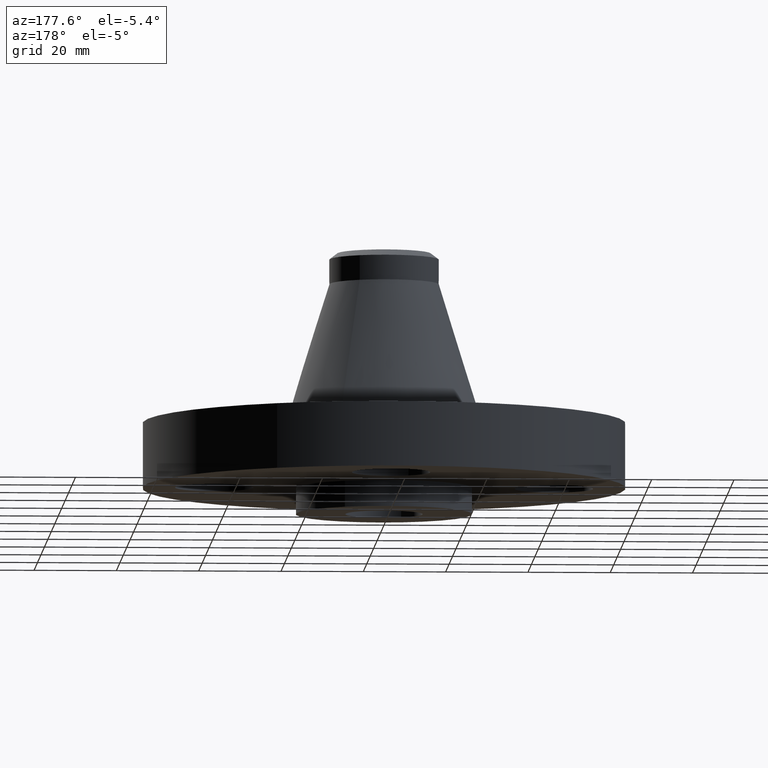
[diagram: clean part render]
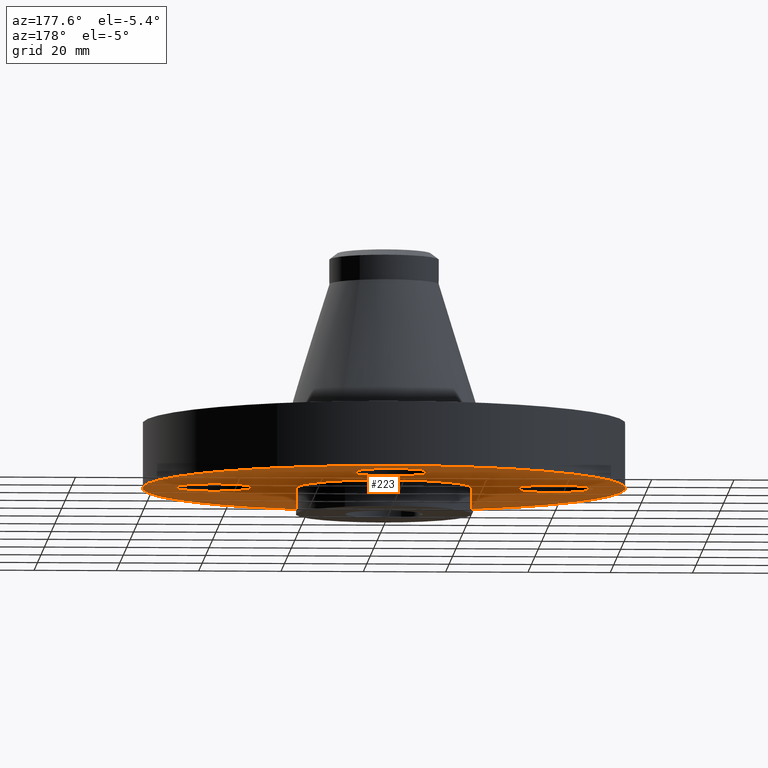
[diagram: same view with one face highlighted and labeled with its STEP entity id]
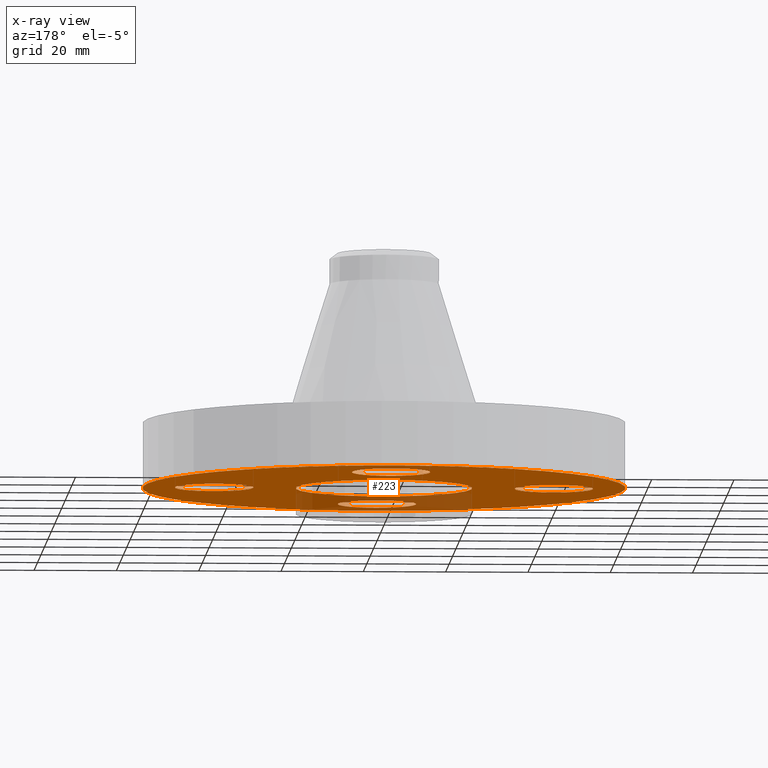
[diagram: x-ray of the same camera — body ghosted, the highlighted face saturated]
A machine part, auxiliary view. The second image highlights one B-rep face of the part: STEP entity #223.
The next image is the same camera in x-ray: the body ghosted, the highlighted face saturated — about 17% of this face is hidden behind the body in this view.
In plain terms, the highlighted planar face has unit normal (0, 0, -1).
Its self-contained STEP definition (entity closure, byte-faithful):
#51=AXIS2_PLACEMENT_3D('Circle Axis2P3D',#49,#50,$) ;
#102=AXIS2_PLACEMENT_3D('Circle Axis2P3D',#100,#101,$) ;
#127=AXIS2_PLACEMENT_3D('Plane Axis2P3D',#124,#125,#126) ;
#131=AXIS2_PLACEMENT_3D('Circle Axis2P3D',#129,#130,$) ;
#140=AXIS2_PLACEMENT_3D('Circle Axis2P3D',#138,#139,$) ;
#153=AXIS2_PLACEMENT_3D('Circle Axis2P3D',#151,#152,$) ;
#162=AXIS2_PLACEMENT_3D('Circle Axis2P3D',#160,#161,$) ;
#171=AXIS2_PLACEMENT_3D('Circle Axis2P3D',#169,#170,$) ;
#180=AXIS2_PLACEMENT_3D('Circle Axis2P3D',#178,#179,$) ;
#189=AXIS2_PLACEMENT_3D('Circle Axis2P3D',#187,#188,$) ;
#198=AXIS2_PLACEMENT_3D('Circle Axis2P3D',#196,#197,$) ;
#207=AXIS2_PLACEMENT_3D('Circle Axis2P3D',#205,#206,$) ;
#216=AXIS2_PLACEMENT_3D('Circle Axis2P3D',#214,#215,$) ;
#44=CARTESIAN_POINT('Vertex',(1.2959065393,0.179784576977,0.)) ;
#49=CARTESIAN_POINT('Axis2P3D Location',(1.62500000001,0.,0.)) ;
#53=CARTESIAN_POINT('Vertex',(1.95409346072,-0.179784576977,2.55543617763E-013)) ;
#100=CARTESIAN_POINT('Axis2P3D Location',(1.62500000001,0.,2.55543617763E-013)) ;
#124=CARTESIAN_POINT('Axis2P3D Location',(0.,0.845000000003,0.)) ;
#129=CARTESIAN_POINT('Axis2P3D Location',(-1.28113093187E-011,-7.89373815657E-012,0.)) ;
#133=CARTESIAN_POINT('Vertex',(-1.10747299418,-2.02721571797,-1.46668329275E-011)) ;
#135=CARTESIAN_POINT('Vertex',(1.10747299418,2.02721571798,-1.46668329275E-011)) ;
#138=CARTESIAN_POINT('Axis2P3D Location',(1.28113093187E-011,-2.18922692747E-011,0.)) ;
#151=CARTESIAN_POINT('Axis2P3D Location',(-4.36655086542E-011,8.96137057823E-012,0.)) ;
#155=CARTESIAN_POINT('Vertex',(0.405114580122,0.741557264796,0.)) ;
#157=CARTESIAN_POINT('Vertex',(-0.405114580122,-0.7415572648,-1.46668329275E-011)) ;
#160=CARTESIAN_POINT('Axis2P3D Location',(1.28118688012E-011,-2.18921294041E-011,0.)) ;
#169=CARTESIAN_POINT('Axis2P3D Location',(3.49676543189E-017,-1.62499999999,0.)) ;
#173=CARTESIAN_POINT('Vertex',(0.179784576973,-1.2959065393,0.)) ;
#175=CARTESIAN_POINT('Vertex',(-0.179784576973,-1.95409346069,0.)) ;
#178=CARTESIAN_POINT('Axis2P3D Location',(-3.49676543189E-017,-1.62499999999,0.)) ;
#187=CARTESIAN_POINT('Axis2P3D Location',(-1.62500000001,2.17732393794E-011,0.)) ;
#191=CARTESIAN_POINT('Vertex',(-1.29590653932,-0.179784576951,0.)) ;
#193=CARTESIAN_POINT('Vertex',(-1.95409346071,0.179784576995,0.)) ;
#196=CARTESIAN_POINT('Axis2P3D Location',(-1.62500000001,2.17732393794E-011,0.)) ;
#205=CARTESIAN_POINT('Axis2P3D Location',(1.28118688012E-011,1.62499999999,0.)) ;
#209=CARTESIAN_POINT('Vertex',(-0.179784576973,1.29590653927,0.)) ;
#211=CARTESIAN_POINT('Vertex',(0.179784576973,1.95409346073,0.)) ;
#214=CARTESIAN_POINT('Axis2P3D Location',(-4.36653687836E-011,1.62500000002,0.)) ;
#50=DIRECTION('Axis2P3D Direction',(0.,-0.,-0.0393700787402)) ;
#101=DIRECTION('Axis2P3D Direction',(0.,-0.,-0.0393700787402)) ;
#125=DIRECTION('Axis2P3D Direction',(0.,0.,-0.0393700787402)) ;
#126=DIRECTION('Axis2P3D XDirection',(0.0393700787402,0.,0.)) ;
#130=DIRECTION('Axis2P3D Direction',(0.,0.,-0.0393700787402)) ;
#139=DIRECTION('Axis2P3D Direction',(0.,0.,-0.0393700787402)) ;
#152=DIRECTION('Axis2P3D Direction',(0.,0.,-0.0393700787402)) ;
#161=DIRECTION('Axis2P3D Direction',(0.,0.,-0.0393700787402)) ;
#170=DIRECTION('Axis2P3D Direction',(0.,0.,-0.0393700787402)) ;
#179=DIRECTION('Axis2P3D Direction',(0.,0.,-0.0393700787402)) ;
#188=DIRECTION('Axis2P3D Direction',(0.,0.,-0.0393700787402)) ;
#197=DIRECTION('Axis2P3D Direction',(0.,0.,-0.0393700787402)) ;
#206=DIRECTION('Axis2P3D Direction',(0.,0.,-0.0393700787402)) ;
#215=DIRECTION('Axis2P3D Direction',(0.,0.,-0.0393700787402)) ;
#144=ORIENTED_EDGE('',*,*,#137,.T.) ;
#145=ORIENTED_EDGE('',*,*,#142,.T.) ;
#148=ORIENTED_EDGE('',*,*,#104,.F.) ;
#149=ORIENTED_EDGE('',*,*,#55,.F.) ;
#166=ORIENTED_EDGE('',*,*,#159,.F.) ;
#167=ORIENTED_EDGE('',*,*,#164,.F.) ;
#184=ORIENTED_EDGE('',*,*,#177,.F.) ;
#185=ORIENTED_EDGE('',*,*,#182,.F.) ;
#202=ORIENTED_EDGE('',*,*,#195,.F.) ;
#203=ORIENTED_EDGE('',*,*,#200,.F.) ;
#220=ORIENTED_EDGE('',*,*,#213,.F.) ;
#221=ORIENTED_EDGE('',*,*,#218,.F.) ;
#150=FACE_BOUND('',#147,.T.) ;
#168=FACE_BOUND('',#165,.T.) ;
#186=FACE_BOUND('',#183,.T.) ;
#204=FACE_BOUND('',#201,.T.) ;
#222=FACE_BOUND('',#219,.T.) ;
#223=ADVANCED_FACE('PartBody',(#146,#150,#168,#186,#204,#222),#128,.T.) ;
#52=CIRCLE('generated circle',#51,0.375000000001) ;
#103=CIRCLE('generated circle',#102,0.375000000001) ;
#132=CIRCLE('generated circle',#131,2.31000000001) ;
#141=CIRCLE('generated circle',#140,2.31000000001) ;
#154=CIRCLE('generated circle',#153,0.845000000012) ;
#163=CIRCLE('generated circle',#162,0.845000000012) ;
#172=CIRCLE('generated circle',#171,0.374999999988) ;
#181=CIRCLE('generated circle',#180,0.374999999988) ;
#190=CIRCLE('generated circle',#189,0.374999999988) ;
#199=CIRCLE('generated circle',#198,0.374999999988) ;
#208=CIRCLE('generated circle',#207,0.375000000021) ;
#217=CIRCLE('generated circle',#216,0.375000000021) ;
#55=EDGE_CURVE('',#45,#54,#52,.T.) ;
#104=EDGE_CURVE('',#54,#45,#103,.T.) ;
#137=EDGE_CURVE('',#134,#136,#132,.T.) ;
#142=EDGE_CURVE('',#136,#134,#141,.T.) ;
#159=EDGE_CURVE('',#156,#158,#154,.T.) ;
#164=EDGE_CURVE('',#158,#156,#163,.T.) ;
#177=EDGE_CURVE('',#174,#176,#172,.T.) ;
#182=EDGE_CURVE('',#176,#174,#181,.T.) ;
#195=EDGE_CURVE('',#192,#194,#190,.T.) ;
#200=EDGE_CURVE('',#194,#192,#199,.T.) ;
#213=EDGE_CURVE('',#210,#212,#208,.T.) ;
#218=EDGE_CURVE('',#212,#210,#217,.T.) ;
#143=EDGE_LOOP('',(#144,#145)) ;
#147=EDGE_LOOP('',(#148,#149)) ;
#165=EDGE_LOOP('',(#166,#167)) ;
#183=EDGE_LOOP('',(#184,#185)) ;
#201=EDGE_LOOP('',(#202,#203)) ;
#219=EDGE_LOOP('',(#220,#221)) ;
#146=FACE_OUTER_BOUND('',#143,.T.) ;
#128=PLANE('',#127) ;
#45=VERTEX_POINT('',#44) ;
#54=VERTEX_POINT('',#53) ;
#134=VERTEX_POINT('',#133) ;
#136=VERTEX_POINT('',#135) ;
#156=VERTEX_POINT('',#155) ;
#158=VERTEX_POINT('',#157) ;
#174=VERTEX_POINT('',#173) ;
#176=VERTEX_POINT('',#175) ;
#192=VERTEX_POINT('',#191) ;
#194=VERTEX_POINT('',#193) ;
#210=VERTEX_POINT('',#209) ;
#212=VERTEX_POINT('',#211) ;